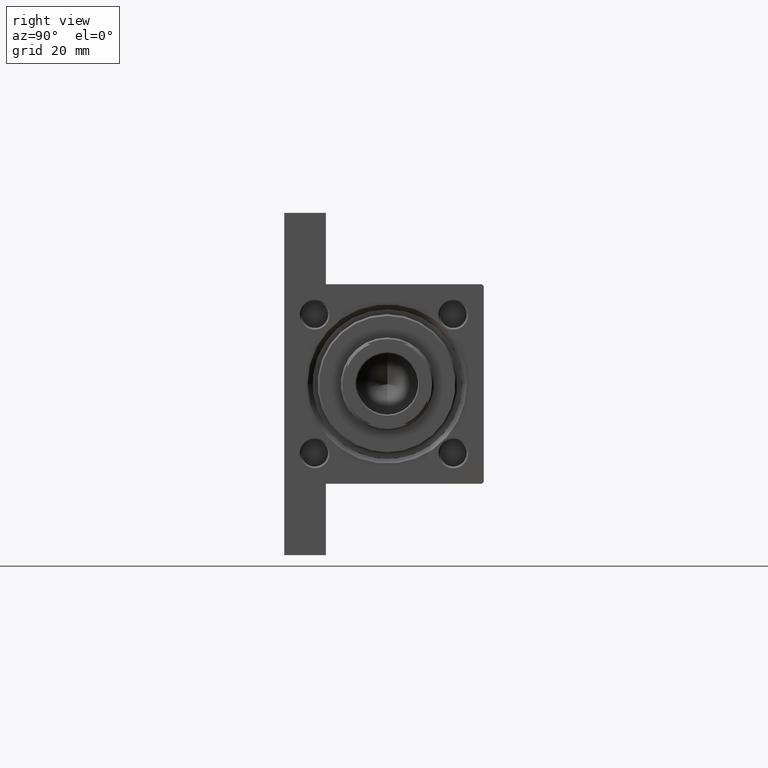
[diagram: clean part render]
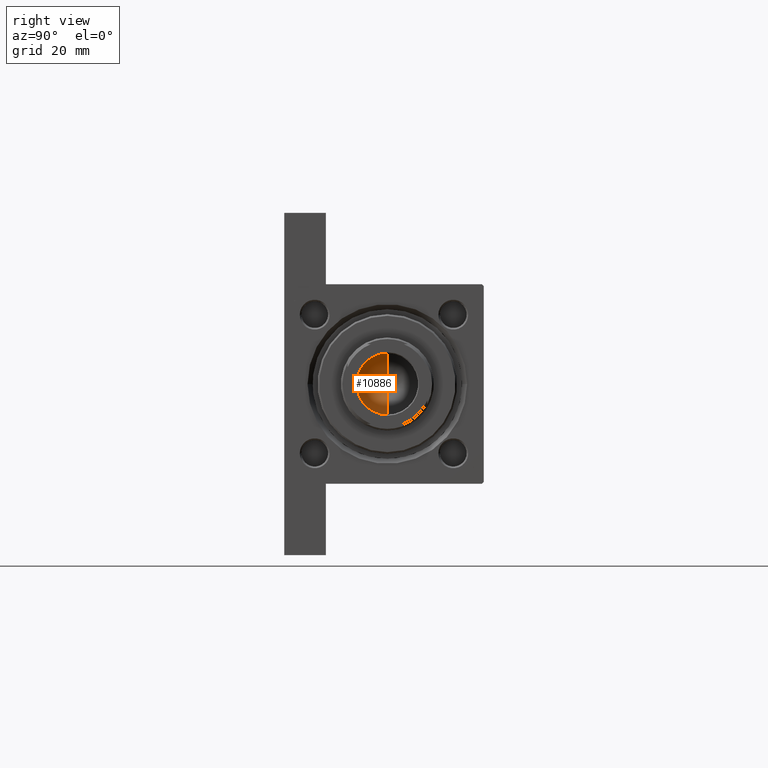
[diagram: same view with one face highlighted and labeled with its STEP entity id]
A machine part, right view. The second image highlights one B-rep face of the part: STEP entity #10886.
In plain terms, the highlighted conical surface has half-angle 59 deg.
Its self-contained STEP definition (entity closure, byte-faithful):
#1530 = AXIS2_PLACEMENT_3D ( 'NONE', #13551, #46852, #43636 ) ;
#1762 = EDGE_CURVE ( 'NONE', #7654, #47017, #3428, .T. ) ;
#3321 = DIRECTION ( 'NONE',  ( 1.000000000000000000, 0.000000000000000000, 0.000000000000000000 ) ) ;
#3428 = LINE ( 'NONE', #18481, #21303 ) ;
#5299 = ORIENTED_EDGE ( 'NONE', *, *, #28115, .T. ) ;
#6617 = AXIS2_PLACEMENT_3D ( 'NONE', #47966, #44757, #3321 ) ;
#7615 = DIRECTION ( 'NONE',  ( 0.8571673007021117785, 0.000000000000000000, 0.5150380749100550437 ) ) ;
#7654 = VERTEX_POINT ( 'NONE', #17136 ) ;
#8195 = VECTOR ( 'NONE', #43004, 1000.000000000000000 ) ;
#8424 = ORIENTED_EDGE ( 'NONE', *, *, #11086, .F. ) ;
#10886 = ADVANCED_FACE ( 'NONE', ( #33426 ), #45956, .F. ) ;
#11086 = EDGE_CURVE ( 'NONE', #7654, #45115, #39570, .T. ) ;
#13551 = CARTESIAN_POINT ( 'NONE',  ( 0.000000000000000000, 0.000000000000000000, 101.0000000000000000 ) ) ;
#17136 = CARTESIAN_POINT ( 'NONE',  ( -9.769621978240258809E-15, 0.000000000000000000, 95.44203927399506426 ) ) ;
#18481 = CARTESIAN_POINT ( 'NONE',  ( 9.249999999999992895, 0.000000000000000000, 101.0000000000000000 ) ) ;
#21303 = VECTOR ( 'NONE', #7615, 1000.000000000000000 ) ;
#22764 = EDGE_LOOP ( 'NONE', ( #8424, #27978, #5299 ) ) ;
#27978 = ORIENTED_EDGE ( 'NONE', *, *, #1762, .T. ) ;
#28115 = EDGE_CURVE ( 'NONE', #47017, #45115, #38539, .T. ) ;
#32454 = CARTESIAN_POINT ( 'NONE',  ( 9.249999999999992895, 0.000000000000000000, 101.0000000000000000 ) ) ;
#33170 = CARTESIAN_POINT ( 'NONE',  ( -9.249999999999992895, 1.132798289211300712E-15, 101.0000000000000000 ) ) ;
#33426 = FACE_OUTER_BOUND ( 'NONE', #22764, .T. ) ;
#38539 = CIRCLE ( 'NONE', #1530, 9.249999999999992895 ) ;
#39570 = LINE ( 'NONE', #47416, #8195 ) ;
#43004 = DIRECTION ( 'NONE',  ( -0.8571673007021117785, 1.049727191138617956E-16, 0.5150380749100550437 ) ) ;
#43636 = DIRECTION ( 'NONE',  ( 1.000000000000000000, 0.000000000000000000, 0.000000000000000000 ) ) ;
#44757 = DIRECTION ( 'NONE',  ( -0.000000000000000000, -0.000000000000000000, 1.000000000000000000 ) ) ;
#45115 = VERTEX_POINT ( 'NONE', #33170 ) ;
#45956 = CONICAL_SURFACE ( 'NONE', #6617, 9.249999999999992895, 1.029744258676653423 ) ;
#46852 = DIRECTION ( 'NONE',  ( -0.000000000000000000, -0.000000000000000000, 1.000000000000000000 ) ) ;
#47017 = VERTEX_POINT ( 'NONE', #32454 ) ;
#47416 = CARTESIAN_POINT ( 'NONE',  ( -9.249999999999992895, 1.132798289211300712E-15, 101.0000000000000000 ) ) ;
#47966 = CARTESIAN_POINT ( 'NONE',  ( 0.000000000000000000, 0.000000000000000000, 101.0000000000000000 ) ) ;